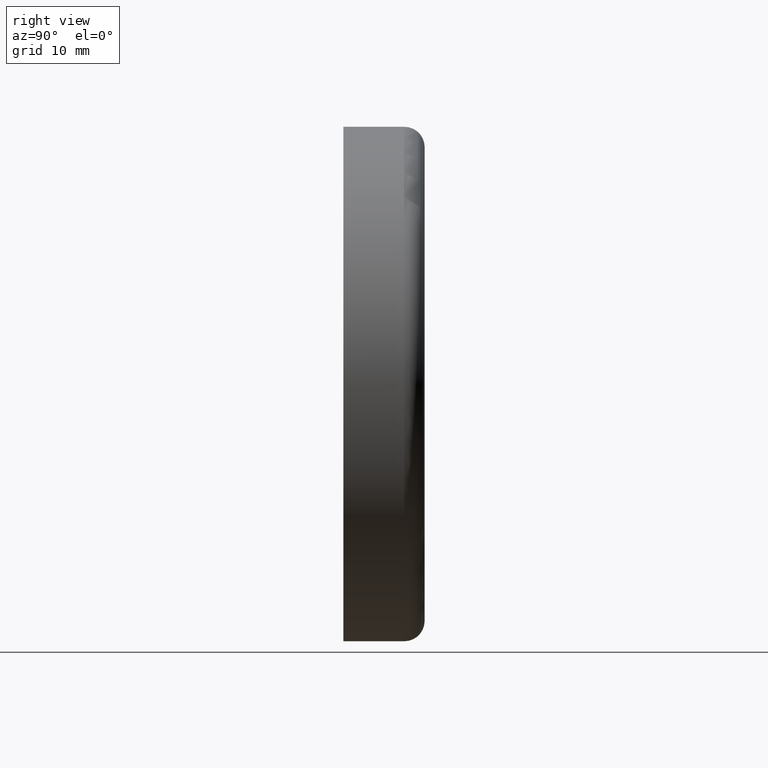
[diagram: clean part render]
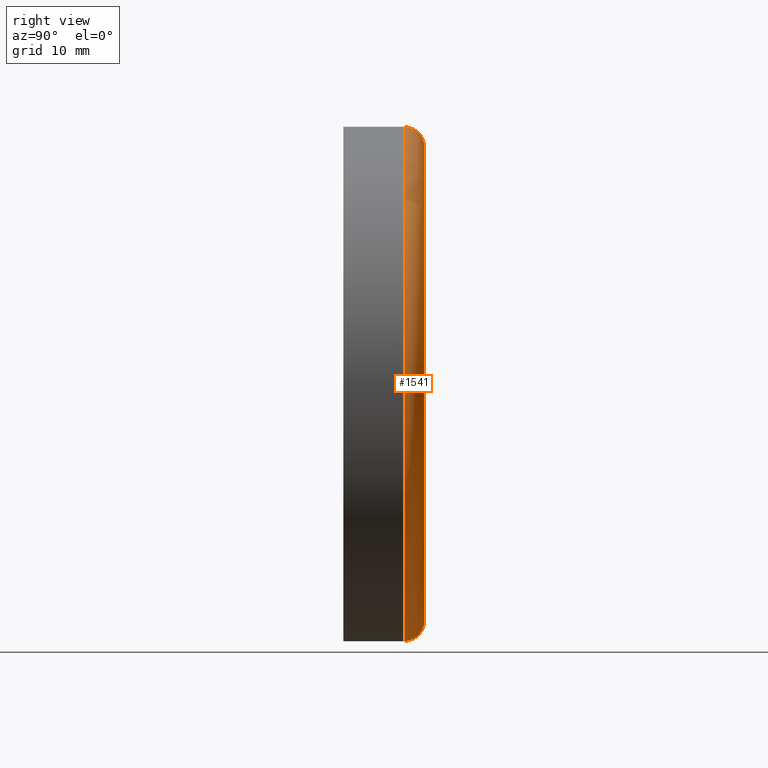
[diagram: same view with one face highlighted and labeled with its STEP entity id]
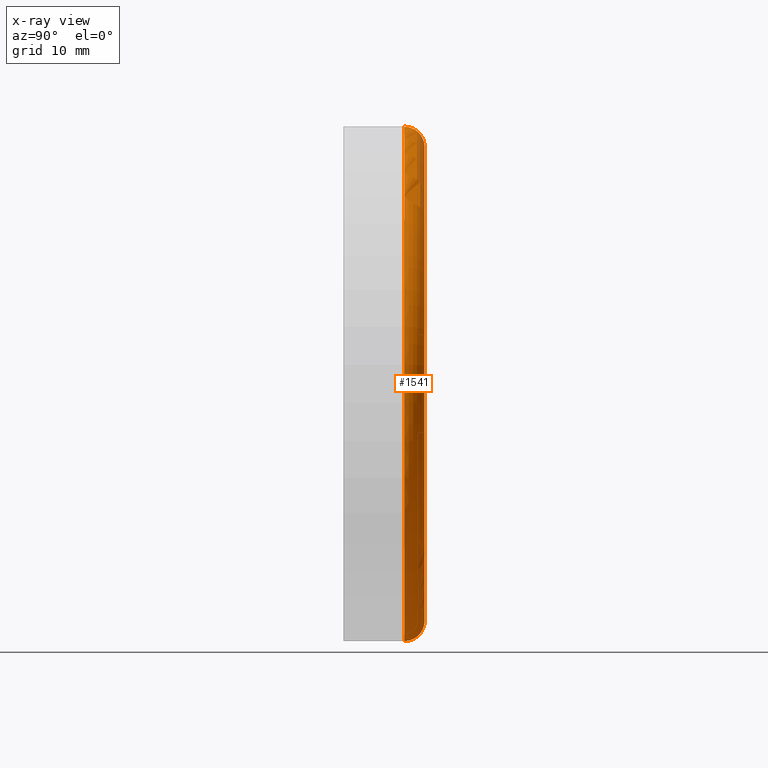
[diagram: x-ray of the same camera — body ghosted, the highlighted face saturated]
A machine part, right view. The second image highlights one B-rep face of the part: STEP entity #1541.
The next image is the same camera in x-ray: the body ghosted, the highlighted face saturated — about 0% of this face is hidden behind the body in this view.
In plain terms, the highlighted toroidal blend (fillet) surface has major radius 35 mm and minor (blend) radius 3 mm.
Its self-contained STEP definition (entity closure, byte-faithful):
#252 = DIRECTION ( 'NONE',  ( -0.000000000000000000, -1.000000000000000000, -0.000000000000000000 ) ) ;
#404 = CIRCLE ( 'NONE', #13380, 35.00000000000000000 ) ;
#413 = AXIS2_PLACEMENT_3D ( 'NONE', #12898, #8841, #10985 ) ;
#720 = VERTEX_POINT ( 'NONE', #7881 ) ;
#1004 = AXIS2_PLACEMENT_3D ( 'NONE', #3161, #7273, #8334 ) ;
#1541 = ADVANCED_FACE ( 'NONE', ( #7205 ), #3277, .T. ) ;
#1704 = VERTEX_POINT ( 'NONE', #11798 ) ;
#2572 = CARTESIAN_POINT ( 'NONE',  ( 4.286263797015736496E-15, 9.000000000000001776, 35.00000000000000000 ) ) ;
#2620 = EDGE_CURVE ( 'NONE', #9972, #720, #8351, .T. ) ;
#2897 = EDGE_LOOP ( 'NONE', ( #6413, #4361, #7992, #8148 ) ) ;
#3001 = CIRCLE ( 'NONE', #12755, 3.000000000000002665 ) ;
#3153 = DIRECTION ( 'NONE',  ( 0.000000000000000000, 0.000000000000000000, -1.000000000000000000 ) ) ;
#3161 = CARTESIAN_POINT ( 'NONE',  ( 0.000000000000000000, 9.000000000000001776, 0.000000000000000000 ) ) ;
#3277 = TOROIDAL_SURFACE ( 'NONE', #1004, 35.00000000000000000, 3.000000000000000888 ) ;
#4361 = ORIENTED_EDGE ( 'NONE', *, *, #9546, .T. ) ;
#6413 = ORIENTED_EDGE ( 'NONE', *, *, #10532, .T. ) ;
#7205 = FACE_OUTER_BOUND ( 'NONE', #2897, .T. ) ;
#7273 = DIRECTION ( 'NONE',  ( -0.000000000000000000, -1.000000000000000000, -0.000000000000000000 ) ) ;
#7352 = CARTESIAN_POINT ( 'NONE',  ( 0.000000000000000000, 9.000000000000001776, 0.000000000000000000 ) ) ;
#7711 = VERTEX_POINT ( 'NONE', #10129 ) ;
#7881 = CARTESIAN_POINT ( 'NONE',  ( 0.000000000000000000, 9.000000000000001776, -38.00000000000000711 ) ) ;
#7992 = ORIENTED_EDGE ( 'NONE', *, *, #11772, .F. ) ;
#8148 = ORIENTED_EDGE ( 'NONE', *, *, #2620, .F. ) ;
#8334 = DIRECTION ( 'NONE',  ( 0.000000000000000000, 0.000000000000000000, -1.000000000000000000 ) ) ;
#8351 = CIRCLE ( 'NONE', #413, 3.000000000000002665 ) ;
#8597 = DIRECTION ( 'NONE',  ( 0.000000000000000000, 0.000000000000000000, -1.000000000000000000 ) ) ;
#8791 = DIRECTION ( 'NONE',  ( -1.224646799147351975E-16, 0.000000000000000000, -1.000000000000000000 ) ) ;
#8841 = DIRECTION ( 'NONE',  ( -1.000000000000000000, 0.000000000000000000, 0.000000000000000000 ) ) ;
#9546 = EDGE_CURVE ( 'NONE', #7711, #1704, #3001, .T. ) ;
#9618 = AXIS2_PLACEMENT_3D ( 'NONE', #7352, #11520, #3153 ) ;
#9972 = VERTEX_POINT ( 'NONE', #10973 ) ;
#10129 = CARTESIAN_POINT ( 'NONE',  ( 4.469960816887840007E-15, 12.00000000000000000, 35.00000000000000000 ) ) ;
#10156 = DIRECTION ( 'NONE',  ( 1.000000000000000000, 0.000000000000000000, -1.224646799147353207E-16 ) ) ;
#10532 = EDGE_CURVE ( 'NONE', #9972, #7711, #404, .T. ) ;
#10973 = CARTESIAN_POINT ( 'NONE',  ( 0.000000000000000000, 12.00000000000000000, -35.00000000000000000 ) ) ;
#10985 = DIRECTION ( 'NONE',  ( 0.000000000000000000, 0.000000000000000000, 1.000000000000000000 ) ) ;
#11329 = CIRCLE ( 'NONE', #9618, 38.00000000000000711 ) ;
#11520 = DIRECTION ( 'NONE',  ( -0.000000000000000000, -1.000000000000000000, -0.000000000000000000 ) ) ;
#11560 = CARTESIAN_POINT ( 'NONE',  ( 0.000000000000000000, 12.00000000000000000, 0.000000000000000000 ) ) ;
#11772 = EDGE_CURVE ( 'NONE', #720, #1704, #11329, .T. ) ;
#11798 = CARTESIAN_POINT ( 'NONE',  ( 4.653657836759942730E-15, 9.000000000000001776, 38.00000000000000711 ) ) ;
#12755 = AXIS2_PLACEMENT_3D ( 'NONE', #2572, #10156, #8791 ) ;
#12898 = CARTESIAN_POINT ( 'NONE',  ( 0.000000000000000000, 9.000000000000001776, -35.00000000000000000 ) ) ;
#13380 = AXIS2_PLACEMENT_3D ( 'NONE', #11560, #252, #8597 ) ;